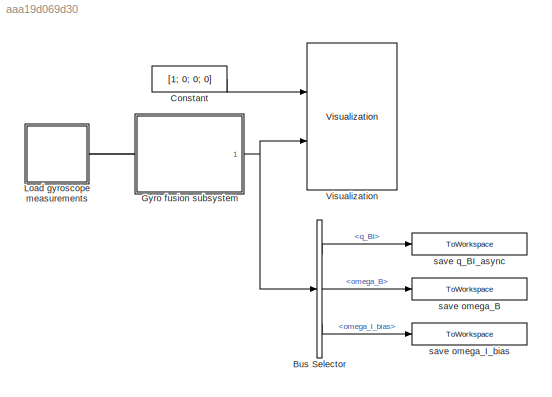
MODEL slx_aaa19d069d30
KIND model
BLOCK [BusSelector] Bus Selector
  OutputSignals = q_BI,omega_B,omega_I_bias
  Ports = [1, 3]
BLOCK [Constant] Constant
  Value = [1; 0; 0; 0]
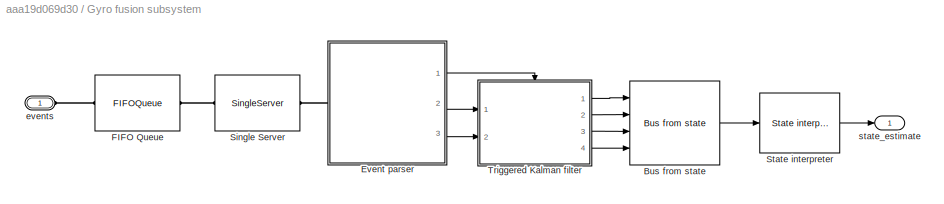
BLOCK [SubSystem] Gyro fusion subsystem
  Ports = [0, 1, 0, 0, 0, 1]
  RequestExecContextInheritance = off
BLOCK [Reference] Gyro fusion subsystem/Bus from state  REF=lib_gyro_fusion/Bus from state  (lib defined in slx_a4b6311b9d1d)
  Ports = [4, 1]
  SourceBlock = lib_gyro_fusion/Bus from state
  SourceType = SubSystem
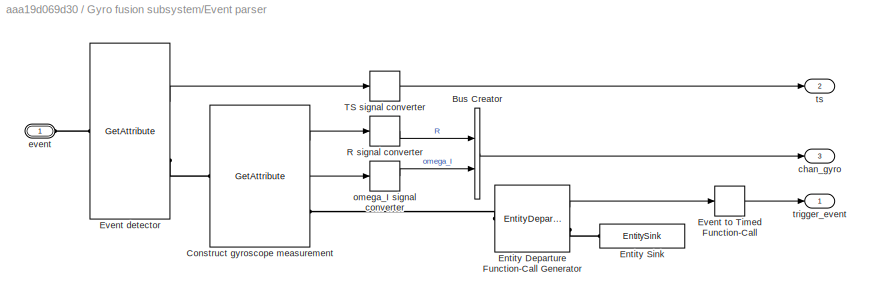
BLOCK [SubSystem] Gyro fusion subsystem/Event parser
  Ports = [0, 3, 0, 0, 0, 1]
  RequestExecContextInheritance = off
BLOCK [BusCreator] Gyro fusion subsystem/Event parser/Bus Creator
  DisplayOption = bar
  Inputs = 2
  Ports = [2, 1]
BLOCK [GetAttribute] Gyro fusion subsystem/Event parser/Construct gyroscope measurement
  AttributeDefaultValue = 1|1
  AttributeMissing = Error|Error
  AttributeName = R|value
  AttributeSendTiming = After entity departure|After entity departure
  AttributeTreatAsVector = 1|1
  EvaluatedDefaultAttributeValue = { [];[]}
  OutputPortMap = o1,o2
  Ports = [0, 2, 0, 0, 0, 1, 1]
BLOCK [EntityDepartureFunctionCallGenerator] Gyro fusion subsystem/Event parser/Entity Departure Function-Call Generator
  OutputPortMap = o0
  Ports = [0, 1, 0, 0, 0, 1, 1]
BLOCK [EntitySink] Gyro fusion subsystem/Event parser/Entity Sink
  Ports = [0, 0, 0, 0, 0, 1]
BLOCK [GetAttribute] Gyro fusion subsystem/Event parser/Event detector
  AttributeName = ts
  EvaluatedDefaultAttributeValue = { []}
  OutputPortMap = o1
  Ports = [0, 1, 0, 0, 0, 1, 1]
BLOCK [EventToTimedFunctionCall] Gyro fusion subsystem/Event parser/Event to Timed Function-Call
  InputPortMap = u0
  OutputPortMap = o0
  Ports = [1, 1]
BLOCK [EventToTimedSignal] Gyro fusion subsystem/Event parser/R signal converter
  InputPortMap = u0
  OutputPortMap = o0
  Ports = [1, 1]
BLOCK [EventToTimedSignal] Gyro fusion subsystem/Event parser/TS signal converter
  InputPortMap = u0
  OutputPortMap = o0
  Ports = [1, 1]
BLOCK [Outport] Gyro fusion subsystem/Event parser/chan_gyro
  IconDisplay = Port number
  Port = 3
BLOCK [PMIOPort] Gyro fusion subsystem/Event parser/event
  Port = 1
  Side = Left
BLOCK [EventToTimedSignal] Gyro fusion subsystem/Event parser/omega_I signal converter
  InputPortMap = u0
  OutputPortMap = o0
  Ports = [1, 1]
BLOCK [Outport] Gyro fusion subsystem/Event parser/trigger_event
  IconDisplay = Port number
BLOCK [Outport] Gyro fusion subsystem/Event parser/ts
  IconDisplay = Port number
  Port = 2
BLOCK [FIFOQueue] Gyro fusion subsystem/FIFO Queue
  Capacity = 500
  Ports = [0, 0, 0, 0, 0, 1, 1]
BLOCK [SingleServer] Gyro fusion subsystem/Single Server
  Ports = [0, 0, 0, 0, 0, 1, 1]
  ServiceTime = 0.001
BLOCK [Reference] Gyro fusion subsystem/State interpreter  REF=lib_gyro_fusion/State interpreter  (lib defined in slx_a4b6311b9d1d)
  Ports = [1, 1]
  SourceBlock = lib_gyro_fusion/State interpreter
  SourceType = SubSystem
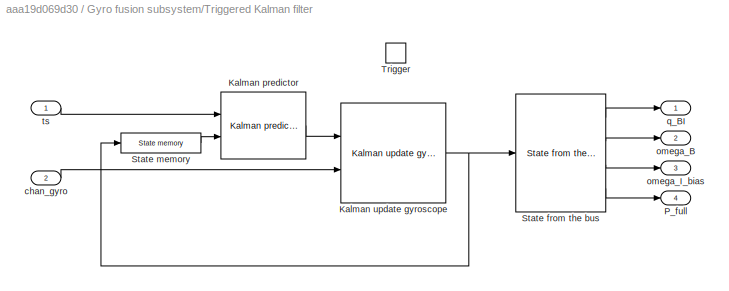
BLOCK [SubSystem] Gyro fusion subsystem/Triggered Kalman filter
  Ports = [2, 4, 0, 1]
  RequestExecContextInheritance = off
  TreatAsAtomicUnit = on
BLOCK [Reference] Gyro fusion subsystem/Triggered Kalman filter/Kalman predictor  REF=lib_gyro_fusion/Kalman predictor  (lib defined in slx_a4b6311b9d1d)
  Ports = [2, 1]
  SourceBlock = lib_gyro_fusion/Kalman predictor
  omega_B_noise = omega_B_noise
  omega_I_bias_noise = omega_bias_I_noise * 0
  q_noise = q_noise
BLOCK [Reference] Gyro fusion subsystem/Triggered Kalman filter/Kalman update gyroscope  REF=lib_gyro_fusion/Kalman update  (lib defined in slx_a4b6311b9d1d)
gyroscope
  Ports = [2, 1]
  SourceBlock = lib_gyro_fusion/Kalman update\ngyroscope
  SourceType = SubSystem
BLOCK [Outport] Gyro fusion subsystem/Triggered Kalman filter/P_full
  IconDisplay = Port number
  Port = 4
BLOCK [Reference] Gyro fusion subsystem/Triggered Kalman filter/State from the bus  REF=lib_gyro_fusion/State from the bus  (lib defined in slx_a4b6311b9d1d)
  Ports = [1, 4]
  SourceBlock = lib_gyro_fusion/State from the bus
  SourceType = SubSystem
BLOCK [Reference] Gyro fusion subsystem/Triggered Kalman filter/State memory  REF=lib_gyro_fusion/State memory  (lib defined in slx_a4b6311b9d1d)
  P_full_init = eye(9) / 1e6
  Ports = [1, 1]
  SourceBlock = lib_gyro_fusion/State memory
  omega_B_init = [0; 0; 0]
  omega_I_bias_init = [0; 0; 0]
  q_BI_init = [1; 0; 0; 0]
BLOCK [TriggerPort] Gyro fusion subsystem/Triggered Kalman filter/Trigger
  Ports = []
  StatesWhenEnabling = held
  TriggerType = function-call
BLOCK [Inport] Gyro fusion subsystem/Triggered Kalman filter/chan_gyro
  IconDisplay = Port number
  Port = 2
BLOCK [Outport] Gyro fusion subsystem/Triggered Kalman filter/omega_B
  IconDisplay = Port number
  Port = 2
BLOCK [Outport] Gyro fusion subsystem/Triggered Kalman filter/omega_I_bias
  IconDisplay = Port number
  Port = 3
BLOCK [Outport] Gyro fusion subsystem/Triggered Kalman filter/q_BI
  IconDisplay = Port number
BLOCK [Inport] Gyro fusion subsystem/Triggered Kalman filter/ts
  IconDisplay = Port number
BLOCK [PMIOPort] Gyro fusion subsystem/events
  Port = 1
  Side = Left
BLOCK [Outport] Gyro fusion subsystem/state_estimate
  IconDisplay = Port number
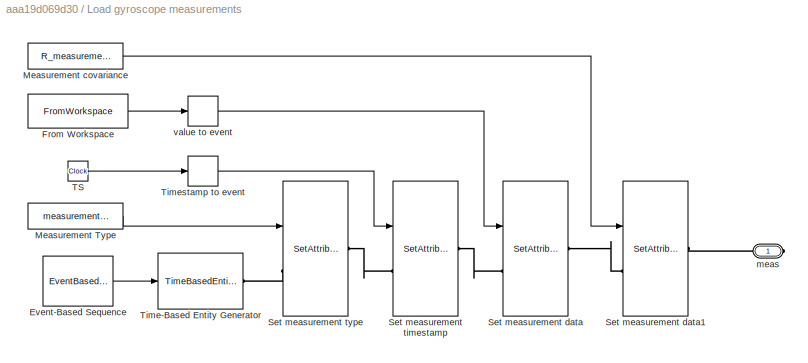
BLOCK [SubSystem] Load gyroscope measurements
  Ports = [0, 0, 0, 0, 0, 0, 1]
  RequestExecContextInheritance = off
BLOCK [EventBasedSequence] Load gyroscope measurements/Event-Based Sequence
  FormOutputOpt = Setting to infinity
  OutputPortMap = o0
  Ports = [0, 1]
  VectorOutputValues = diff(observed_data.time)
BLOCK [FromWorkspace] Load gyroscope measurements/From Workspace
  SampleTime = 0
  VariableName = observed_data
  ZeroCross = on
BLOCK [Constant] Load gyroscope measurements/Measurement Type
  Value = measurement_type
BLOCK [Constant] Load gyroscope measurements/Measurement covariance
  Value = R_measurement
BLOCK [SetAttribute] Load gyroscope measurements/Set measurement data
  AttributeFrom = Signal port
  AttributeName = value
  EvaluatedAttributeValue = { []}
  InputPortMap = u0
  Ports = [1, 0, 0, 0, 0, 1, 1]
BLOCK [SetAttribute] Load gyroscope measurements/Set measurement data1
  AttributeFrom = Signal port
  AttributeName = R
  EvaluatedAttributeValue = { []}
  InputPortMap = u0
  Ports = [1, 0, 0, 0, 0, 1, 1]
BLOCK [SetAttribute] Load gyroscope measurements/Set measurement timestamp
  AttributeFrom = Signal port
  AttributeName = ts
  EvaluatedAttributeValue = { []}
  InputPortMap = u0
  Ports = [1, 0, 0, 0, 0, 1, 1]
BLOCK [SetAttribute] Load gyroscope measurements/Set measurement type
  AttributeFrom = Signal port
  AttributeName = meas_type
  EvaluatedAttributeValue = { []}
  InputPortMap = u0
  Ports = [1, 0, 0, 0, 0, 1, 1]
BLOCK [Clock] Load gyroscope measurements/TS
BLOCK [TimeBasedEntityGenerator] Load gyroscope measurements/Time-Based Entity Generator
  GenerateEntitiesUpon = Intergeneration time from port t
  InputPortMap = u0
  Ports = [1, 0, 0, 0, 0, 0, 1]
BLOCK [TimedToEventSignal] Load gyroscope measurements/Timestamp to event
  InputPortMap = u0
  OutputPortMap = o0
  Ports = [1, 1]
BLOCK [PMIOPort] Load gyroscope measurements/meas
  Port = 1
  Side = Right
BLOCK [TimedToEventSignal] Load gyroscope measurements/value to event
  InputPortMap = u0
  OutputPortMap = o0
  Ports = [1, 1]
BLOCK [Reference] Visualization  REF=lib_gyro_fusion/Visualization  (lib defined in slx_a4b6311b9d1d)
  Ports = [2]
  SourceBlock = lib_gyro_fusion/Visualization
  SourceType = SubSystem
BLOCK [ToWorkspace] save omega_B
  FixptAsFi = on
  MaxDataPoints = inf
  Ports = [1]
  SampleTime = -1
  Save2DSignal = 3-D array (concatenate along third dimension)
  SaveFormat = Timeseries
  VariableName = omega_B_async
BLOCK [ToWorkspace] save omega_I_bias
  FixptAsFi = on
  MaxDataPoints = inf
  Ports = [1]
  SampleTime = -1
  Save2DSignal = 3-D array (concatenate along third dimension)
  SaveFormat = Timeseries
  VariableName = omega_bias_I_async
BLOCK [ToWorkspace] save q_BI_async
  FixptAsFi = on
  MaxDataPoints = inf
  Ports = [1]
  SampleTime = -1
  Save2DSignal = 3-D array (concatenate along third dimension)
  SaveFormat = Timeseries
  VariableName = q_BI_async
LINE Bus Selector:1 -> save q_BI_async:1
LINE Bus Selector:2 -> save omega_B:1
LINE Bus Selector:3 -> save omega_I_bias:1
LINE Constant:1 -> Visualization:1
LINE Gyro fusion subsystem/Bus from state:1 -> Gyro fusion subsystem/State interpreter:1
LINE Gyro fusion subsystem/Event parser/Bus Creator:1 -> Gyro fusion subsystem/Event parser/chan_gyro:1
LINE Gyro fusion subsystem/Event parser/Construct gyroscope measurement:1 -> Gyro fusion subsystem/Event parser/R signal converter:1
LINE Gyro fusion subsystem/Event parser/Construct gyroscope measurement:2 -> Gyro fusion subsystem/Event parser/omega_I signal converter:1
LINE Gyro fusion subsystem/Event parser/Entity Departure Function-Call Generator:1 -> Gyro fusion subsystem/Event parser/Event to Timed Function-Call:1
LINE Gyro fusion subsystem/Event parser/Event detector:1 -> Gyro fusion subsystem/Event parser/TS signal converter:1
LINE Gyro fusion subsystem/Event parser/Event to Timed Function-Call:1 -> Gyro fusion subsystem/Event parser/trigger_event:1
LINE Gyro fusion subsystem/Event parser/R signal converter:1 -> Gyro fusion subsystem/Event parser/Bus Creator:1
LINE Gyro fusion subsystem/Event parser/TS signal converter:1 -> Gyro fusion subsystem/Event parser/ts:1
LINE Gyro fusion subsystem/Event parser/omega_I signal converter:1 -> Gyro fusion subsystem/Event parser/Bus Creator:2
LINE Gyro fusion subsystem/Event parser:1 -> Gyro fusion subsystem/Triggered Kalman filter:trigger
LINE Gyro fusion subsystem/Event parser:2 -> Gyro fusion subsystem/Triggered Kalman filter:1
LINE Gyro fusion subsystem/Event parser:3 -> Gyro fusion subsystem/Triggered Kalman filter:2
LINE Gyro fusion subsystem/State interpreter:1 -> Gyro fusion subsystem/state_estimate:1
LINE Gyro fusion subsystem/Triggered Kalman filter/Kalman predictor:1 -> Gyro fusion subsystem/Triggered Kalman filter/Kalman update gyroscope:1
NET Gyro fusion subsystem/Triggered Kalman filter/Kalman update gyroscope:1 -> Gyro fusion subsystem/Triggered Kalman filter/State from the bus:1, Gyro fusion subsystem/Triggered Kalman filter/State memory:1
LINE Gyro fusion subsystem/Triggered Kalman filter/State from the bus:1 -> Gyro fusion subsystem/Triggered Kalman filter/q_BI:1
LINE Gyro fusion subsystem/Triggered Kalman filter/State from the bus:2 -> Gyro fusion subsystem/Triggered Kalman filter/omega_B:1
LINE Gyro fusion subsystem/Triggered Kalman filter/State from the bus:3 -> Gyro fusion subsystem/Triggered Kalman filter/omega_I_bias:1
LINE Gyro fusion subsystem/Triggered Kalman filter/State from the bus:4 -> Gyro fusion subsystem/Triggered Kalman filter/P_full:1
LINE Gyro fusion subsystem/Triggered Kalman filter/State memory:1 -> Gyro fusion subsystem/Triggered Kalman filter/Kalman predictor:2
LINE Gyro fusion subsystem/Triggered Kalman filter/chan_gyro:1 -> Gyro fusion subsystem/Triggered Kalman filter/Kalman update gyroscope:2
LINE Gyro fusion subsystem/Triggered Kalman filter/ts:1 -> Gyro fusion subsystem/Triggered Kalman filter/Kalman predictor:1
LINE Gyro fusion subsystem/Triggered Kalman filter:1 -> Gyro fusion subsystem/Bus from state:1
LINE Gyro fusion subsystem/Triggered Kalman filter:2 -> Gyro fusion subsystem/Bus from state:2
LINE Gyro fusion subsystem/Triggered Kalman filter:3 -> Gyro fusion subsystem/Bus from state:3
LINE Gyro fusion subsystem/Triggered Kalman filter:4 -> Gyro fusion subsystem/Bus from state:4
NET Gyro fusion subsystem:1 -> Bus Selector:1, Visualization:2
LINE Load gyroscope measurements/Event-Based Sequence:1 -> Load gyroscope measurements/Time-Based Entity Generator:1
LINE Load gyroscope measurements/From Workspace:1 -> Load gyroscope measurements/value to event:1
LINE Load gyroscope measurements/Measurement Type:1 -> Load gyroscope measurements/Set measurement type:1
LINE Load gyroscope measurements/Measurement covariance:1 -> Load gyroscope measurements/Set measurement data1:1
LINE Load gyroscope measurements/TS:1 -> Load gyroscope measurements/Timestamp to event:1
LINE Load gyroscope measurements/Timestamp to event:1 -> Load gyroscope measurements/Set measurement timestamp:1
LINE Load gyroscope measurements/value to event:1 -> Load gyroscope measurements/Set measurement data:1
PLINE Gyro fusion subsystem/Event parser/Construct gyroscope measurement:LConn1 -- Gyro fusion subsystem/Event parser/Event detector:RConn1
PLINE Gyro fusion subsystem/Event parser/Construct gyroscope measurement:RConn1 -- Gyro fusion subsystem/Event parser/Entity Departure Function-Call Generator:LConn1
PLINE Gyro fusion subsystem/Event parser/Entity Departure Function-Call Generator:RConn1 -- Gyro fusion subsystem/Event parser/Entity Sink:LConn1
PLINE Gyro fusion subsystem/Event parser/Event detector:LConn1 -- Gyro fusion subsystem/Event parser/event:RConn1
PLINE Gyro fusion subsystem/Event parser:LConn1 -- Gyro fusion subsystem/Single Server:RConn1
PLINE Gyro fusion subsystem/FIFO Queue:LConn1 -- Gyro fusion subsystem/events:RConn1
PLINE Gyro fusion subsystem/FIFO Queue:RConn1 -- Gyro fusion subsystem/Single Server:LConn1
PLINE Gyro fusion subsystem:LConn1 -- Load gyroscope measurements:RConn1
PLINE Load gyroscope measurements/Set measurement data1:LConn1 -- Load gyroscope measurements/Set measurement data:RConn1
PLINE Load gyroscope measurements/Set measurement data1:RConn1 -- Load gyroscope measurements/meas:RConn1
PLINE Load gyroscope measurements/Set measurement data:LConn1 -- Load gyroscope measurements/Set measurement timestamp:RConn1
PLINE Load gyroscope measurements/Set measurement timestamp:LConn1 -- Load gyroscope measurements/Set measurement type:RConn1
PLINE Load gyroscope measurements/Set measurement type:LConn1 -- Load gyroscope measurements/Time-Based Entity Generator:RConn1
note: NET lines group one-source signal fan-out (src -> all destinations, sorted); 1:1 wires keep LINE
